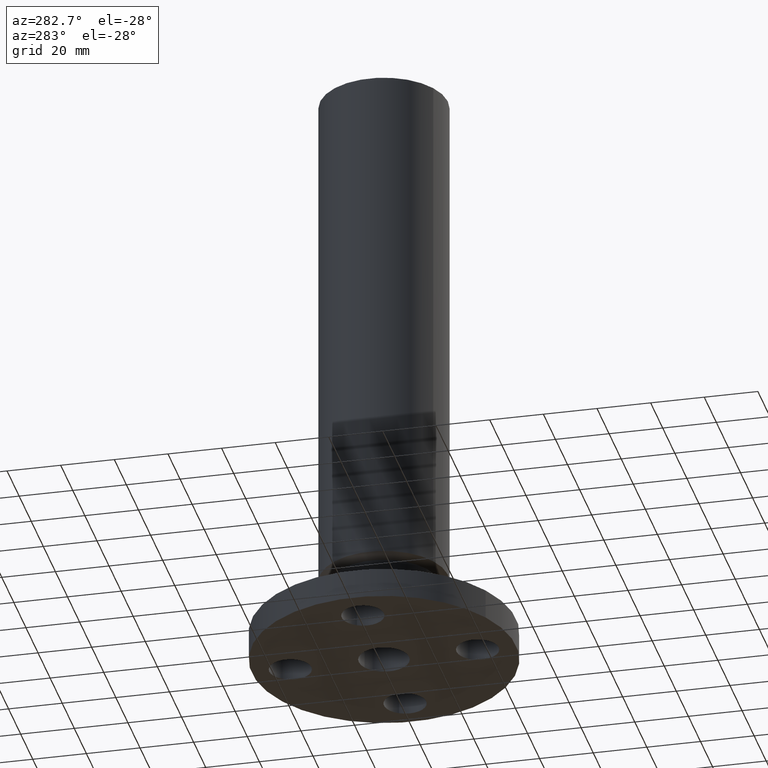
[diagram: clean part render]
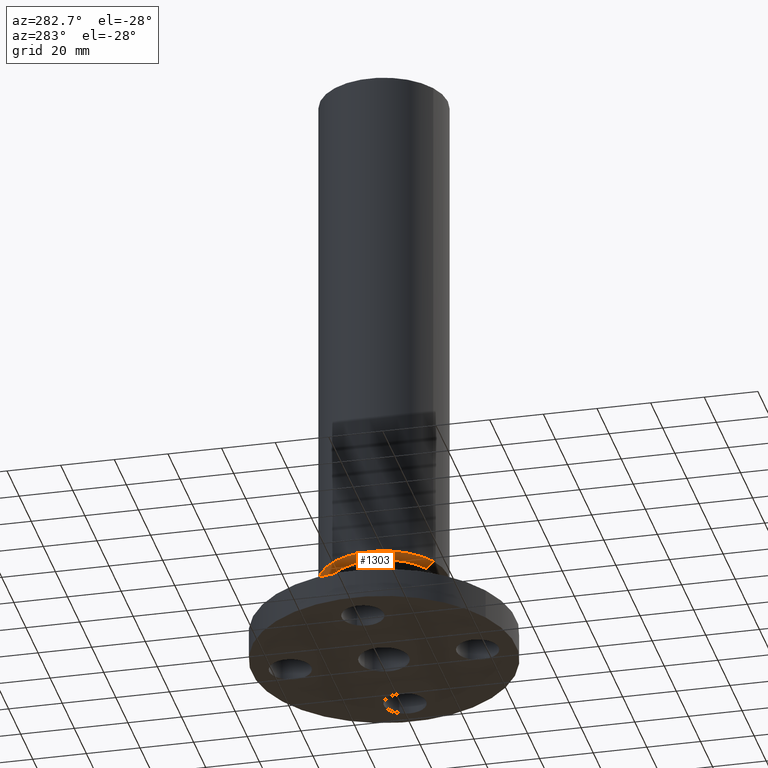
[diagram: same view with one face highlighted and labeled with its STEP entity id]
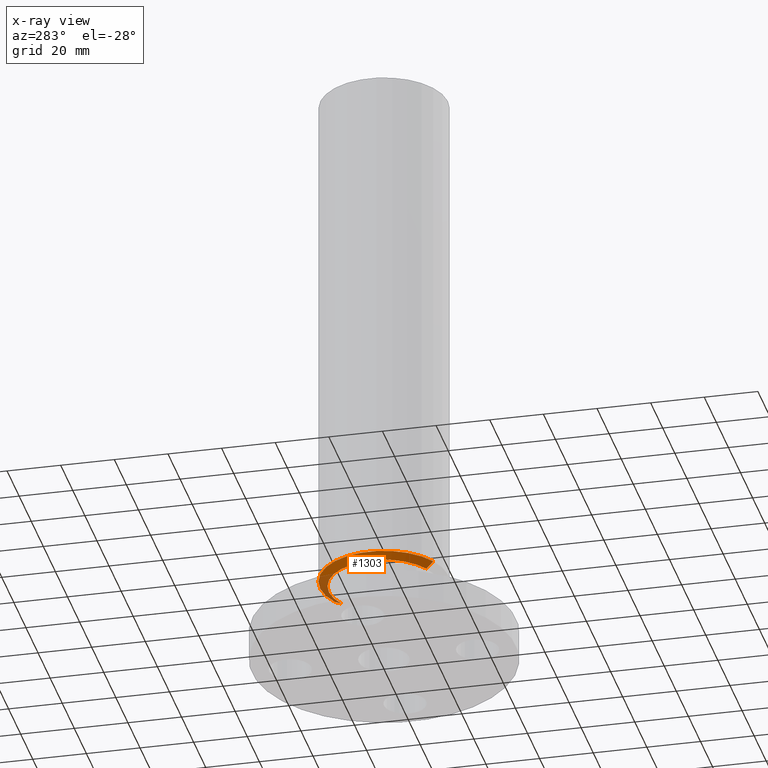
[diagram: x-ray of the same camera — body ghosted, the highlighted face saturated]
A machine part, auxiliary view. The second image highlights one B-rep face of the part: STEP entity #1303.
The next image is the same camera in x-ray: the body ghosted, the highlighted face saturated — about 17% of this face is hidden behind the body in this view.
In plain terms, the highlighted conical surface has half-angle 60 deg.
Its self-contained STEP definition (entity closure, byte-faithful):
#738=AXIS2_PLACEMENT_3D('Circle Axis2P3D',#736,#737,$) ;
#1264=AXIS2_PLACEMENT_3D('Cone Axis2P3D',#1261,#1262,#1263) ;
#1294=AXIS2_PLACEMENT_3D('Circle Axis2P3D',#1292,#1293,$) ;
#714=CARTESIAN_POINT('Vertex',(0.388334686271,0.710841875134,1.1875)) ;
#721=CARTESIAN_POINT('Vertex',(-0.388334686271,-0.710841875134,1.1875)) ;
#736=CARTESIAN_POINT('Axis2P3D Location',(0.,0.,1.1875)) ;
#1261=CARTESIAN_POINT('Axis2P3D Location',(0.,0.,1.1875)) ;
#1266=CARTESIAN_POINT('Line Origine',(0.41949734628,0.767884741657,1.2250277675)) ;
#1270=CARTESIAN_POINT('Vertex',(0.45066000629,0.82492760818,1.262555535)) ;
#1277=CARTESIAN_POINT('Vertex',(-0.45066000629,-0.82492760818,1.262555535)) ;
#1280=CARTESIAN_POINT('Line Origine',(-0.41949734628,-0.767884741657,1.2250277675)) ;
#1292=CARTESIAN_POINT('Axis2P3D Location',(0.,0.,1.262555535)) ;
#737=DIRECTION('Axis2P3D Direction',(0.,0.,-0.0393700787402)) ;
#1262=DIRECTION('Axis2P3D Direction',(-0.,-0.,0.0393700787402)) ;
#1263=DIRECTION('Axis2P3D XDirection',(0.0188750212049,0.0345504945626,0.)) ;
#1267=DIRECTION('Vector Direction',(0.0163462478604,0.0299216060045,0.0196850393701)) ;
#1281=DIRECTION('Vector Direction',(-0.0163462478604,-0.0299216060045,0.0196850393701)) ;
#1293=DIRECTION('Axis2P3D Direction',(-0.,0.,0.0393700787402)) ;
#1268=VECTOR('Line Direction',#1267,0.0393700787402) ;
#1282=VECTOR('Line Direction',#1281,0.0393700787402) ;
#1298=ORIENTED_EDGE('',*,*,#740,.F.) ;
#1299=ORIENTED_EDGE('',*,*,#1284,.T.) ;
#1300=ORIENTED_EDGE('',*,*,#1296,.T.) ;
#1301=ORIENTED_EDGE('',*,*,#1272,.F.) ;
#1303=ADVANCED_FACE('PartBody',(#1302),#1265,.T.) ;
#739=CIRCLE('generated circle',#738,0.810000000003) ;
#1295=CIRCLE('generated circle',#1294,0.940000000004) ;
#1265=CONICAL_SURFACE('Cone',#1264,0.810000000003,1.0471975512) ;
#740=EDGE_CURVE('',#722,#715,#739,.T.) ;
#1272=EDGE_CURVE('',#715,#1271,#1269,.T.) ;
#1284=EDGE_CURVE('',#722,#1278,#1283,.T.) ;
#1296=EDGE_CURVE('',#1278,#1271,#1295,.F.) ;
#1297=EDGE_LOOP('',(#1298,#1299,#1300,#1301)) ;
#1302=FACE_OUTER_BOUND('',#1297,.T.) ;
#1269=LINE('Line',#1266,#1268) ;
#1283=LINE('Line',#1280,#1282) ;
#715=VERTEX_POINT('',#714) ;
#722=VERTEX_POINT('',#721) ;
#1271=VERTEX_POINT('',#1270) ;
#1278=VERTEX_POINT('',#1277) ;